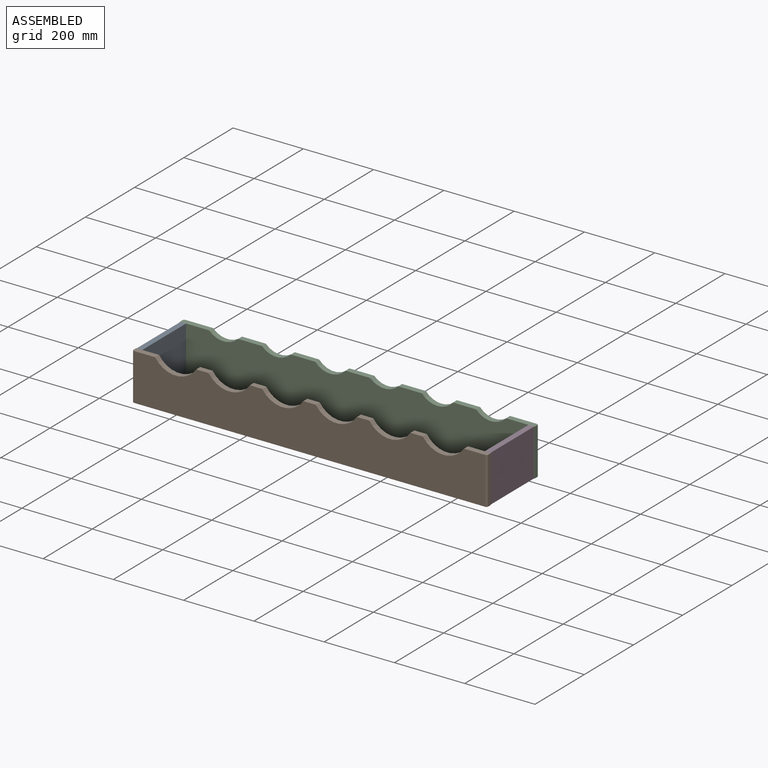
[diagram: assembled view]
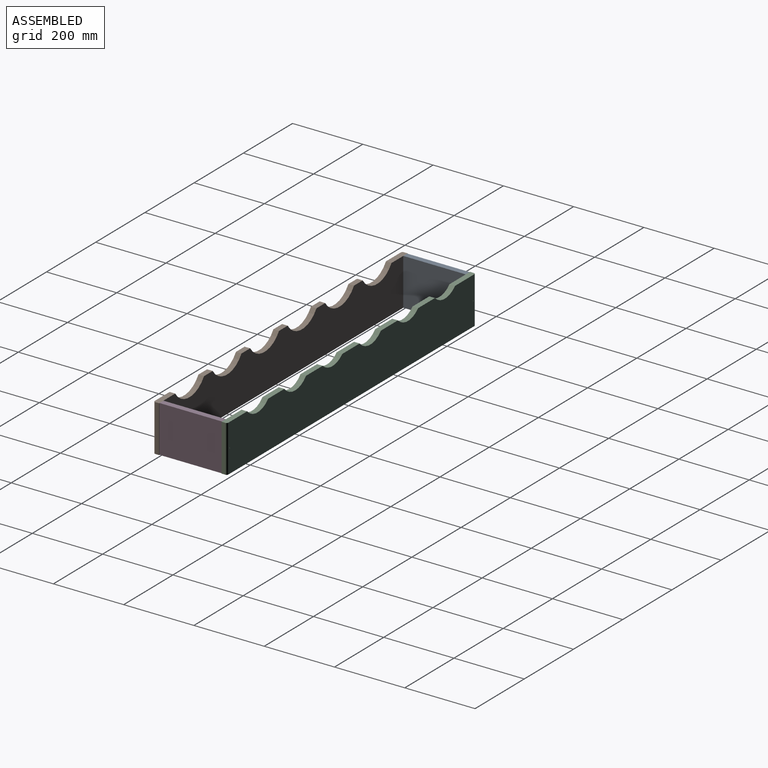
[diagram: assembled view, second angle]
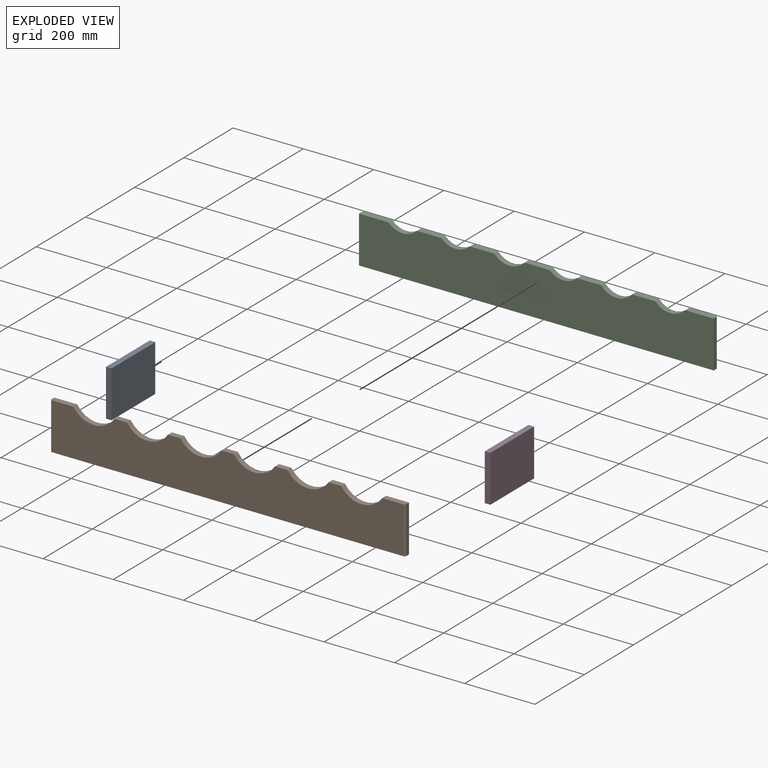
[diagram: exploded view]
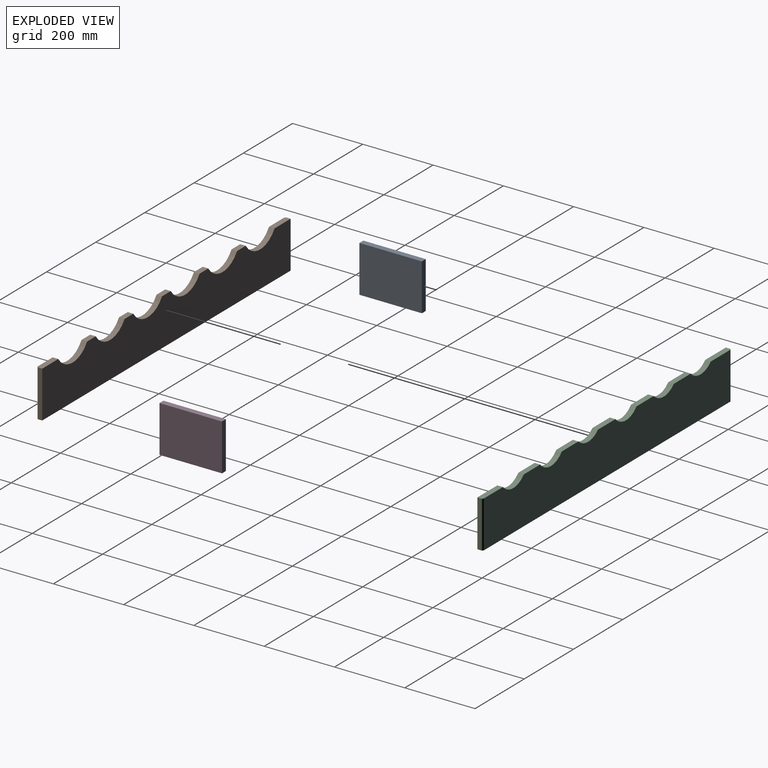
[diagram: exploded view, second angle]
ASSEMBLY  parts=4 mates=4
PART A: 6 faces, bbox 15.9x177.8x133.4 mm
  f0: plane 177.8x15.88mm, normal (0,0,1), area 2822.6mm2, adj f1,f3,f4,f5
  f1: plane 133.35x15.88mm, normal (0,-1,0), area 2116.9mm2, adj f0,f2,f4,f5
  f2: plane 177.8x15.88mm, normal (0,0,-1), area 2822.6mm2, adj f1,f3,f4,f5
  f3: plane 133.35x15.88mm, normal (0,1,0), area 2116.9mm2, adj f0,f2,f4,f5
  f4: plane 177.8x133.35mm, normal (1,0,0), area 23709.6mm2, adj f0,f1,f2,f3
  f5: plane 177.8x133.35mm, normal (-1,0,0), area 23709.6mm2, adj f0,f1,f2,f3
PART B: 22 faces, bbox 1009.7x15.9x133.4 mm
  f0: plane 35.31x15.88mm, normal (0,0,1), area 560.6mm2, adj f7,f8,f18,f19
  f1: plane 65.28x15.88mm, normal (0,0,1), area 1030.8mm2, adj f7,f8,f9,f12,f19
  f2: plane 35.31x15.88mm, normal (0,0,1), area 560.6mm2, adj f7,f8,f17,f18
  f3: plane 35.31x15.88mm, normal (0,0,1), area 560.6mm2, adj f7,f8,f16,f17
  f4: plane 35.31x15.88mm, normal (0,0,1), area 560.6mm2, adj f7,f8,f15,f16
  f5: plane 35.31x15.88mm, normal (0,0,1), area 560.6mm2, adj f7,f8,f14,f15
  f6: plane 65.28x15.88mm, normal (0,0,1), area 1030.8mm2, adj f7,f8,f11,f13,f14
  f7: plane 999.49x133.35mm, normal (0,-1,0), area 117566.7mm2, adj f0,f1,f2,f3,f4,f5,f6,f10
  f8: plane 1009.65x133.35mm, normal (0,1,0), area 118921.5mm2, adj f0,f1,f2,f3,f4,f5,f6,f9
  f9: plane 133.35x10.8mm, normal (-1,0,0), area 1439.5mm2, adj f1,f8,f10,f12
  f10: plane 1009.65x15.88mm, normal (0,0,-1), area 16017.1mm2, adj f7,f8,f9,f11,f12,f13
  f11: plane 133.35x10.8mm, normal (1,0,0), area 1439.5mm2, adj f6,f8,f10,f13
  f12: cylinder r=5.08mm len=133.35mm, axis (0,0,1), area 1064.1mm2, adj f1,f7,f9,f10
  f13: cylinder r=5.08mm len=133.35mm, axis (0,0,-1), area 1064.1mm2, adj f6,f7,f10,f11
  f14: cylinder r=69.85mm len=117.09mm, axis (0,1,0), area 2204.1mm2, adj f5,f6,f7,f8
  f15: cylinder r=69.85mm len=117.09mm, axis (0,1,0), area 2204.1mm2, adj f4,f5,f7,f8
  f16: cylinder r=69.85mm len=117.09mm, axis (0,1,0), area 2204.1mm2, adj f3,f4,f7,f8
  f17: cylinder r=69.85mm len=117.09mm, axis (0,1,0), area 2204.1mm2, adj f2,f3,f7,f8
  f18: cylinder r=69.85mm len=117.09mm, axis (0,1,0), area 2204.1mm2, adj f0,f2,f7,f8
  f19: cylinder r=69.85mm len=117.09mm, axis (0,1,0), area 2204.1mm2, adj f0,f1,f7,f8
  f20: cylinder r=0.79mm len=15.88mm, axis (0,1,0), area 79.2mm2, adj f7,f8
  f21: cylinder r=0.79mm len=15.88mm, axis (0,1,0), area 79.2mm2, adj f7,f8
PART C: 22 faces, bbox 1009.7x15.9x133.4 mm
  f0: plane 81.23x15.88mm, normal (0,0,1), area 1284mm2, adj f7,f10,f11,f12,f19
  f1: plane 66.14x15.88mm, normal (0,0,1), area 1049.9mm2, adj f10,f11,f18,f19
  f2: plane 67.34x15.88mm, normal (0,0,1), area 1069.1mm2, adj f10,f11,f17,f18
  f3: plane 70.54x15.88mm, normal (0,0,1), area 1119.8mm2, adj f10,f11,f16,f17
  f4: plane 69.42x15.88mm, normal (0,0,1), area 1102mm2, adj f10,f11,f15,f16
  f5: plane 68.12x15.88mm, normal (0,0,1), area 1081.4mm2, adj f10,f11,f14,f15
  f6: plane 83.52x15.88mm, normal (0,0,1), area 1320.3mm2, adj f9,f10,f11,f13,f14
  f7: plane 133.35x10.8mm, normal (-1,0,0), area 1439.5mm2, adj f0,f8,f11,f12
  f8: plane 1009.65x15.88mm, normal (0,0,-1), area 16017.1mm2, adj f7,f9,f10,f11,f12,f13
  f9: plane 133.35x10.8mm, normal (1,0,0), area 1439.5mm2, adj f6,f8,f11,f13
  f10: plane 999.49x133.35mm, normal (0,-1,0), area 126855.6mm2, adj f0,f1,f2,f3,f4,f5,f6,f8
  f11: plane 1009.65x133.35mm, normal (0,1,0), area 128210.4mm2, adj f0,f1,f2,f3,f4,f5,f6,f7
  f12: cylinder r=5.08mm len=133.35mm, axis (0,0,1), area 1064.1mm2, adj f0,f7,f8,f10
  f13: cylinder r=5.08mm len=133.35mm, axis (0,0,-1), area 1064.1mm2, adj f6,f8,f9,f10
  f14: cylinder r=57.15mm len=82.05mm, axis (0,-1,0), area 1452.9mm2, adj f5,f6,f10,f11
  f15: cylinder r=57.15mm len=82.05mm, axis (0,-1,0), area 1452.9mm2, adj f4,f5,f10,f11
  f16: cylinder r=57.15mm len=86.17mm, axis (0,-1,0), area 1549.5mm2, adj f3,f4,f10,f11
  f17: cylinder r=57.15mm len=79.81mm, axis (0,-1,0), area 1402.6mm2, adj f2,f3,f10,f11
  f18: cylinder r=57.15mm len=88.07mm, axis (0,-1,0), area 1596.2mm2, adj f1,f2,f10,f11
  f19: cylinder r=57.15mm len=85.19mm, axis (0,-1,0), area 1526.1mm2, adj f0,f1,f10,f11
  f20: cylinder r=0.79mm len=15.88mm, axis (0,1,0), area 79.2mm2, adj f10,f11
  f21: cylinder r=0.79mm len=15.88mm, axis (0,1,0), area 79.2mm2, adj f10,f11
PART D: same geometry as A
PLACE A t=(-503.56,-97.07,-213.15)mm
PLACE B t=(-0.33,-185.97,-213.15)mm
PLACE C rot(axis=(0,0,-1),180deg) t=(-0.33,-8.17,-213.15)mm
PLACE D t=(487.04,-97.07,-213.15)mm
MATE fastened A.f1 <-> B.f21  axis (0,-1,0) through (-495.63,-185.97,-146.47)mm
MATE fastened D.f3 <-> C.f21  axis (0,1,0) through (494.97,-8.17,-146.47)mm
MATE fastened C.f20 <-> A.f3  axis (0,-1,0) through (-495.63,-8.17,-146.47)mm
MATE fastened B.f20 <-> D.f1  axis (0,1,0) through (494.97,-185.97,-146.47)mm
